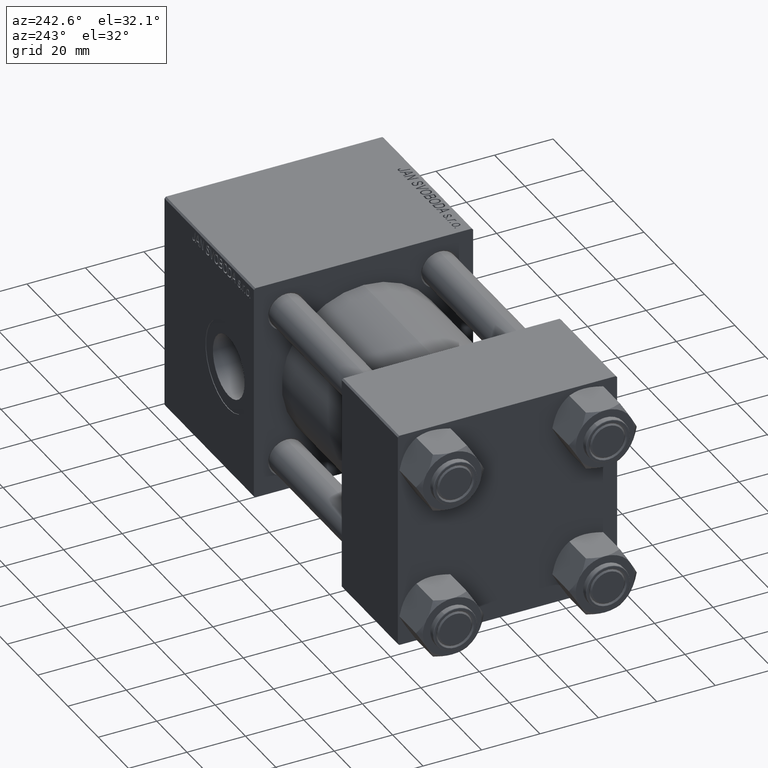
[diagram: clean part render]
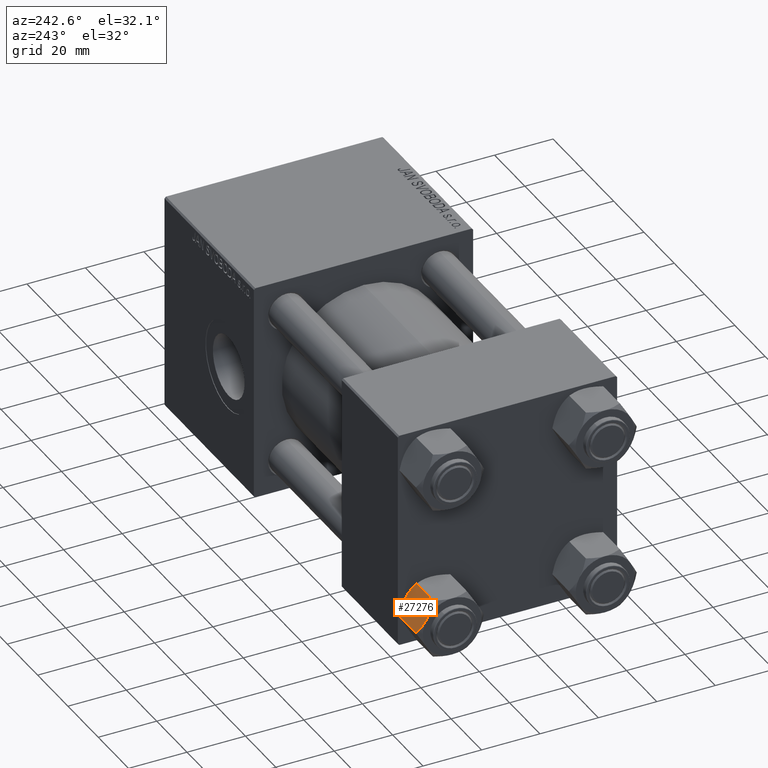
[diagram: same view with one face highlighted and labeled with its STEP entity id]
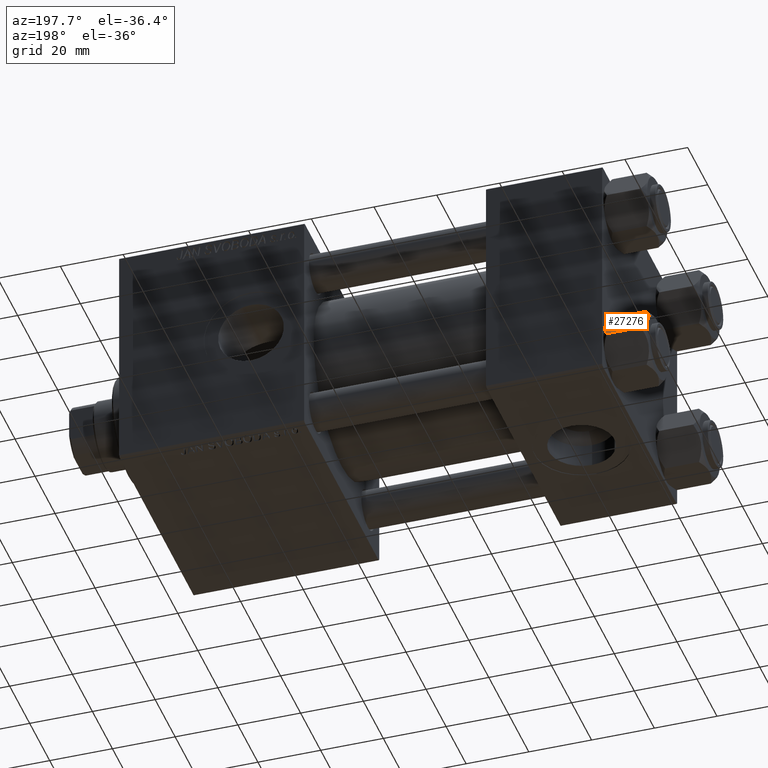
[diagram: same view with one face highlighted and labeled with its STEP entity id]
A machine part, auxiliary view. The second image highlights one B-rep face of the part: STEP entity #27276.
A second angle (auxiliary view) of the same face is appended — the face is thin or edge-on in the first view.
In plain terms, the highlighted planar face has unit normal (-0, -0.866, -0.5).
Its self-contained STEP definition (entity closure, byte-faithful):
#274 = CARTESIAN_POINT ( 'NONE',  ( 8.202333004087902779, 5.919572880271052995, -13.96005881939309212 ) ) ;
#514 = CARTESIAN_POINT ( 'NONE',  ( 8.460569896449619876, 5.472293462311864864, -14.00000000000000355 ) ) ;
#883 = FACE_OUTER_BOUND ( 'NONE', #45793, .T. ) ;
#1301 = CARTESIAN_POINT ( 'NONE',  ( 9.716999946243698005, 3.296092779912227044, -13.84547602999601779 ) ) ;
#1559 = CARTESIAN_POINT ( 'NONE',  ( 10.69662495661650503, 1.599332489581332339, -13.28854452935654962 ) ) ;
#2438 = CARTESIAN_POINT ( 'NONE',  ( 6.733375043383499126, 8.463882702393844326, -0.7114554706434494946 ) ) ;
#3075 = B_SPLINE_CURVE_WITH_KNOTS ( 'NONE', 3,
 ( #23482, #19173, #3940, #7752, #43015, #34670, #23728, #50134 ),
 .UNSPECIFIED., .F., .F.,
 ( 4, 2, 2, 4 ),
 ( 2.544312114903581015E-07, 0.003011550106433540791, 0.004517197944044564449, 0.006022845781655588107 ),
 .UNSPECIFIED. ) ;
#3784 = ORIENTED_EDGE ( 'NONE', *, *, #40224, .F. ) ;
#3940 = CARTESIAN_POINT ( 'NONE',  ( 10.69859855102501278, 1.595914123792262718, -0.7141438259524649501 ) ) ;
#4323 = CARTESIAN_POINT ( 'NONE',  ( 7.700834831386346835, 6.788193195293095172, -13.80960203119265728 ) ) ;
#5202 = PLANE ( 'NONE',  #15118 ) ;
#5827 = VERTEX_POINT ( 'NONE', #46801 ) ;
#6992 = CARTESIAN_POINT ( 'NONE',  ( 5.810000000000000497, 10.06321519197518022, -1.556784808024815892 ) ) ;
#7752 = CARTESIAN_POINT ( 'NONE',  ( 9.974696630283190757, 2.849749030213792000, -0.3002673809867367205 ) ) ;
#8380 = VERTEX_POINT ( 'NONE', #18326 ) ;
#10121 = CARTESIAN_POINT ( 'NONE',  ( 11.62000000000000099, -1.813166800014576593E-15, -14.00000000000000000 ) ) ;
#10271 = ORIENTED_EDGE ( 'NONE', *, *, #49629, .F. ) ;
#11714 = ORIENTED_EDGE ( 'NONE', *, *, #47803, .F. ) ;
#12551 = DIRECTION ( 'NONE',  ( -0.8660254037844387076, -0.4999999999999998335, 0.000000000000000000 ) ) ;
#12939 = CARTESIAN_POINT ( 'NONE',  ( 6.731401448974989599, 8.467301068182914392, -13.28585617404753272 ) ) ;
#13323 = CARTESIAN_POINT ( 'NONE',  ( 5.810000000000000497, 10.06321519197518022, -14.00000000000000000 ) ) ;
#14077 = CARTESIAN_POINT ( 'NONE',  ( 5.810000000000000497, 10.06321519197518022, -12.44321519197518278 ) ) ;
#15118 = AXIS2_PLACEMENT_3D ( 'NONE', #13323, #12551, #39463 ) ;
#15748 = ORIENTED_EDGE ( 'NONE', *, *, #44588, .F. ) ;
#16235 = CARTESIAN_POINT ( 'NONE',  ( 8.715000000000003411, 5.031607595987588333, -14.00000000000000000 ) ) ;
#17630 = VERTEX_POINT ( 'NONE', #24277 ) ;
#18326 = CARTESIAN_POINT ( 'NONE',  ( 8.715000000000003411, 5.031607595987588333, -14.00000000000000000 ) ) ;
#19173 = CARTESIAN_POINT ( 'NONE',  ( 11.16445427487472131, 0.7890283410877956261, -1.101239082899531985 ) ) ;
#19371 = B_SPLINE_CURVE_WITH_KNOTS ( 'NONE', 3,
 ( #25763, #37195, #45067, #2438, #21972, #6992 ),
 .UNSPECIFIED., .F., .F.,
 ( 4, 2, 4 ),
 ( 0.006022845781655588107, 0.009013049135303636758, 0.01200325248895168367 ),
 .UNSPECIFIED. ) ;
#20278 = VERTEX_POINT ( 'NONE', #14077 ) ;
#20327 = ORIENTED_EDGE ( 'NONE', *, *, #40240, .T. ) ;
#21489 = CARTESIAN_POINT ( 'NONE',  ( 11.62000000000000099, -1.924525737834042474E-15, -1.556784808024813893 ) ) ;
#21972 = CARTESIAN_POINT ( 'NONE',  ( 6.265018354709773973, 9.275100283241448196, -1.101766453314953154 ) ) ;
#23151 = VERTEX_POINT ( 'NONE', #21489 ) ;
#23482 = CARTESIAN_POINT ( 'NONE',  ( 11.62000000000000099, -1.924525737834042474E-15, -1.556784808024813893 ) ) ;
#23728 = CARTESIAN_POINT ( 'NONE',  ( 8.969430103550381617, 4.590921729663312689, 3.523657060577888622E-15 ) ) ;
#24277 = CARTESIAN_POINT ( 'NONE',  ( 8.715000000000005187, 5.031607595987590109, 0.000000000000000000 ) ) ;
#24393 = CARTESIAN_POINT ( 'NONE',  ( 8.715000000000003411, 5.031607595987588333, -14.00000000000000000 ) ) ;
#24648 = CARTESIAN_POINT ( 'NONE',  ( 9.220295946303432189, 4.156409344131451356, -14.00000000000000178 ) ) ;
#25515 = CARTESIAN_POINT ( 'NONE',  ( 5.810000000000000497, 10.06321519197518022, -14.00000000000000000 ) ) ;
#25593 = DIRECTION ( 'NONE',  ( -0.000000000000000000, -0.000000000000000000, 1.000000000000000000 ) ) ;
#25763 = CARTESIAN_POINT ( 'NONE',  ( 8.715000000000005187, 5.031607595987590109, 0.000000000000000000 ) ) ;
#26109 = VECTOR ( 'NONE', #25593, 1000.000000000000000 ) ;
#26296 = ORIENTED_EDGE ( 'NONE', *, *, #35121, .F. ) ;
#27276 = ADVANCED_FACE ( 'NONE', ( #883 ), #5202, .F. ) ;
#28707 = CARTESIAN_POINT ( 'NONE',  ( 11.62000000000000099, -1.795242522838921761E-15, -12.44321519197518455 ) ) ;
#29197 = VECTOR ( 'NONE', #33399, 1000.000000000000000 ) ;
#29847 = VERTEX_POINT ( 'NONE', #50206 ) ;
#31226 = CARTESIAN_POINT ( 'NONE',  ( 5.810000000000000497, 10.06321519197518022, -12.44321519197518278 ) ) ;
#32982 = LINE ( 'NONE', #10121, #26109 ) ;
#33399 = DIRECTION ( 'NONE',  ( -0.000000000000000000, -0.000000000000000000, 1.000000000000000000 ) ) ;
#34670 = CARTESIAN_POINT ( 'NONE',  ( 9.227666995912102266, 4.143642311704121894, -0.03994118060690670519 ) ) ;
#35121 = EDGE_CURVE ( 'NONE', #20278, #8380, #45777, .T. ) ;
#35289 = CARTESIAN_POINT ( 'NONE',  ( 6.265545725125283738, 9.274186850887380373, -12.89876091710046602 ) ) ;
#36828 = CARTESIAN_POINT ( 'NONE',  ( 11.16498164529022574, 0.7881149087337280257, -12.89823354668504862 ) ) ;
#37195 = CARTESIAN_POINT ( 'NONE',  ( 8.209704053696576409, 5.906805847843727086, 3.430483436379916373E-15 ) ) ;
#39338 = CARTESIAN_POINT ( 'NONE',  ( 7.455303369716809847, 7.213466161761385997, -13.69973261901326289 ) ) ;
#39463 = DIRECTION ( 'NONE',  ( 0.4999999999999998335, -0.8660254037844387076, 0.000000000000000000 ) ) ;
#40224 = EDGE_CURVE ( 'NONE', #17630, #5827, #19371, .T. ) ;
#40240 = EDGE_CURVE ( 'NONE', #20278, #5827, #45567, .T. ) ;
#41782 = B_SPLINE_CURVE_WITH_KNOTS ( 'NONE', 3,
 ( #24393, #24648, #1301, #1559, #36828, #28707 ),
 .UNSPECIFIED., .F., .F.,
 ( 4, 2, 4 ),
 ( 0.006022845781655591577, 0.009013049135303638493, 0.01200325248895168714 ),
 .UNSPECIFIED. ) ;
#43015 = CARTESIAN_POINT ( 'NONE',  ( 9.729165168613654657, 3.275021996682081493, -0.1903979688073405840 ) ) ;
#44588 = EDGE_CURVE ( 'NONE', #29847, #23151, #32982, .T. ) ;
#45067 = CARTESIAN_POINT ( 'NONE',  ( 7.713000053756307928, 6.767122412062951398, -0.1545239700039825748 ) ) ;
#45567 = LINE ( 'NONE', #25515, #29197 ) ;
#45777 = B_SPLINE_CURVE_WITH_KNOTS ( 'NONE', 3,
 ( #31226, #35289, #12939, #39338, #4323, #274, #514, #16235 ),
 .UNSPECIFIED., .F., .F.,
 ( 4, 2, 2, 4 ),
 ( 2.544312114902182352E-07, 0.003011550106433540791, 0.004517197944044566184, 0.006022845781655591577 ),
 .UNSPECIFIED. ) ;
#45793 = EDGE_LOOP ( 'NONE', ( #26296, #20327, #3784, #11714, #15748, #10271 ) ) ;
#46801 = CARTESIAN_POINT ( 'NONE',  ( 5.810000000000000497, 10.06321519197518022, -1.556784808024815892 ) ) ;
#47803 = EDGE_CURVE ( 'NONE', #23151, #17630, #3075, .T. ) ;
#49629 = EDGE_CURVE ( 'NONE', #8380, #29847, #41782, .T. ) ;
#50134 = CARTESIAN_POINT ( 'NONE',  ( 8.715000000000005187, 5.031607595987590109, 0.000000000000000000 ) ) ;
#50206 = CARTESIAN_POINT ( 'NONE',  ( 11.62000000000000099, -1.795242522838921761E-15, -12.44321519197518455 ) ) ;